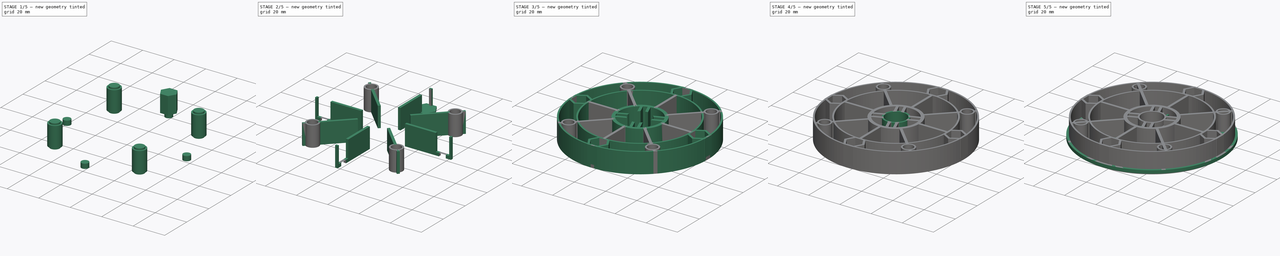
[diagram: build sequence overview — one tinted view per stage of 5, left to right]
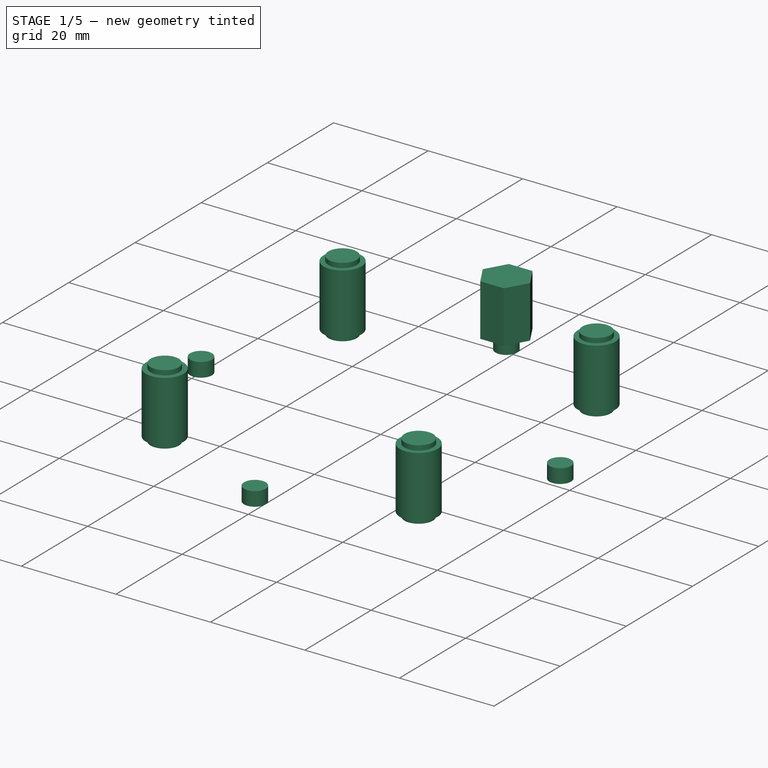
[diagram: stage 1 of 5 — iso view after this stage's code; geometry added in this stage tinted green]
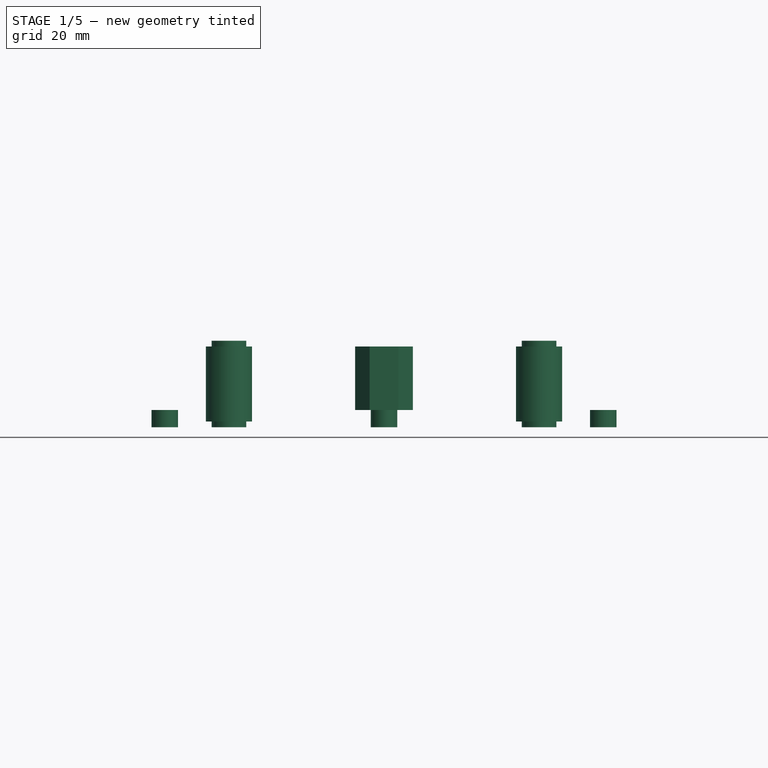
[diagram: stage 1 of 5 — front view after this stage's code; geometry added in this stage tinted green]
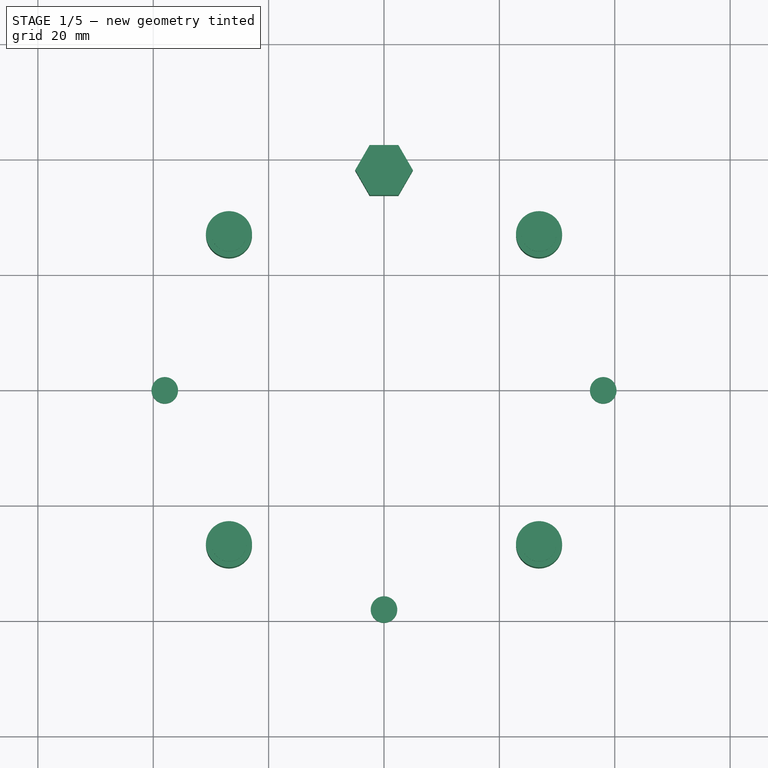
[diagram: stage 1 of 5 — top view after this stage's code; geometry added in this stage tinted green]
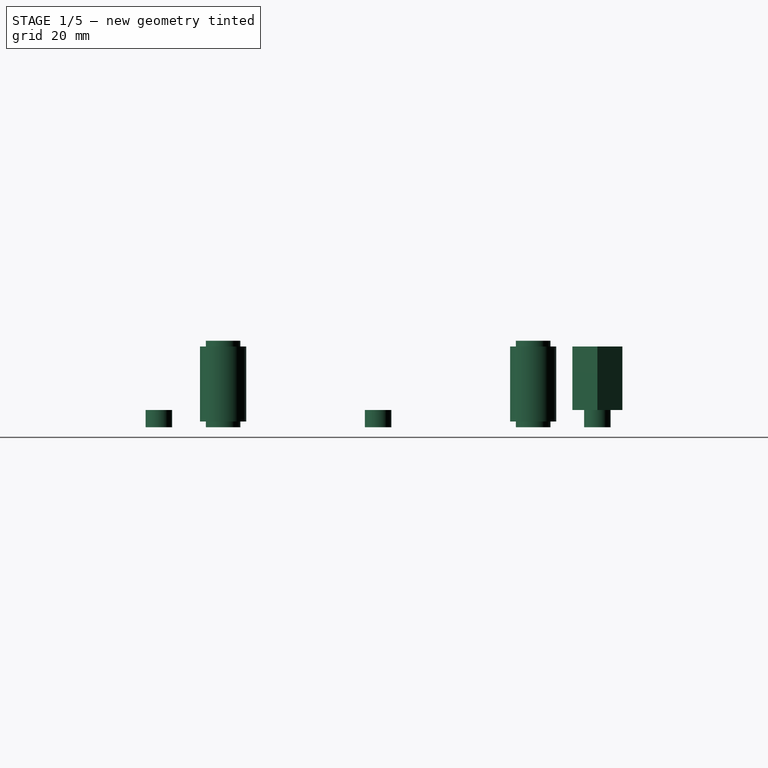
[diagram: stage 1 of 5 — right view after this stage's code; geometry added in this stage tinted green]
FCSTD DOCUMENT  (FreeCAD 0.19R24291 (Git))
Label: tripod
License: All rights reserved
LicenseURL: http://en.wikipedia.org/wiki/All_rights_reserved
objects: Sketcher::SketchObject×16, Part::Extrusion×16, Part::FeaturePython×10, Part::Cut×4, Part::Compound×4, Spreadsheet::Sheet×1, PartDesign::FeatureBase×1, PartDesign::Body×1
note: 42 computed .brp shape members not serialized (recipe doc carries the construction recipe); baked Part::Feature solids carry a one-line shape summary decoded from their .brp

FEATURE [Sketcher::SketchObject] Sketch010
  FullyConstrained = true
  sketch-geometry (7):
    g0: LineSegment StartX=-5 StartY=38 StartZ=0 EndX=-2.5 EndY=33.6699 EndZ=0
    g1: LineSegment StartX=-2.5 StartY=33.6699 StartZ=0 EndX=2.5 EndY=33.6699 EndZ=0
    g2: LineSegment StartX=2.5 StartY=33.6699 StartZ=0 EndX=5 EndY=38 EndZ=0
    g3: LineSegment StartX=5 StartY=38 StartZ=0 EndX=2.5 EndY=42.3301 EndZ=0
    g4: LineSegment StartX=2.5 StartY=42.3301 StartZ=0 EndX=-2.5 EndY=42.3301 EndZ=0
    g5: LineSegment StartX=-2.5 StartY=42.3301 StartZ=0 EndX=-5 EndY=38 EndZ=0
    g6: Circle CenterX=0 CenterY=38 CenterZ=0 NormalX=0 NormalY=0 NormalZ=1 AngleXU=0 Radius=5
  constraints (17):
    c: Coincident(g0,g1)
    c: Coincident(g1,g2)
    c: Coincident(g2,g3)
    c: Coincident(g3,g4)
    c: Coincident(g4,g5)
    c: Coincident(g5,g0)
    c: Equal(g0, g1-g5) x5
    c: PointOnObject(g0,g6)
    c: PointOnObject(g1,g6)
    c: PointOnObject(g2,g6)
    c: PointOnObject(g3,g6)
    c: PointOnObject(g4,g6)
    c: PointOnObject(g5,g6)
    c: PointOnObject(g6,g-2)
    c: Horizontal(g1)
    c: Radius(g6) = 5
    c: DistanceY(g6) = 38
FEATURE [Part::Extrusion] Extrude010
  Base = -> Sketch010
  Dir = (0,0,1)
  DirMode = 2
  FaceMakerClass = Part::FaceMakerBullseye
  LengthFwd = 11
  LengthRev = 0
  Solid = true
  Symmetric = false
FEATURE [Sketcher::SketchObject] Sketch017
  FullyConstrained = true
  expr: Constraints[0] = Spreadsheet.screw_6_32_r2
  sketch-geometry (1):
    g0: Circle CenterX=0 CenterY=38 CenterZ=0 NormalX=0 NormalY=0 NormalZ=1 AngleXU=0 Radius=2.3
  constraints (3):
    c: Radius(g0) = 2.3
    c: DistanceY(g0) = 38
    c: PointOnObject(g0,g-2)
FEATURE [Part::Extrusion] Extrude017
  Base = -> Sketch017
  Dir = (0,0,1)
  DirMode = 2
  FaceMakerClass = Part::FaceMakerBullseye
  LengthFwd = 0
  LengthRev = 3
  Solid = true
  Symmetric = false
FEATURE [Part::FeaturePython] Array010  # Draft array (typed FeaturePython)
  Angle = 360
  ArrayType = 1
  Axis = (0,0,1)
  Base = -> Extrude017
  Center = (0,0,0)
  Count = 4
  ExpandArray = false
  Fuse = false
  IntervalAxis = (0,0,0)
  IntervalX = (100,0,0)
  IntervalY = (0,100,0)
  IntervalZ = (0,0,100)
  NumberCircles = 3
  NumberPolar = 4
  NumberX = 2
  NumberY = 2
  NumberZ = 1
  PlacementList = 4 placements: [(0,0,0),(0,0,0),(0,0,0),(0,0,0)]
  RadialDistance = 50
  ScaleList = (4) [(1,1,1),(1,1,1),(1,1,1),(1,1,1)]
  Symmetry = 1
  TangentialDistance = 25
FEATURE [Sketcher::SketchObject] Sketch018
  FullyConstrained = true
  sketch-geometry (1):
    g0: Circle CenterX=0 CenterY=38 CenterZ=0 NormalX=0 NormalY=0 NormalZ=1 AngleXU=0 Radius=3
  constraints (3):
    c: Radius(g0) = 3
    c: DistanceY(g0) = 38
    c: PointOnObject(g0,g-2)
FEATURE [Part::Extrusion] Extrude018
  Base = -> Sketch018
  Dir = (0,0,1)
  DirMode = 2
  FaceMakerClass = Part::FaceMakerBullseye
  LengthFwd = 12
  LengthRev = 3
  Solid = true
  Symmetric = false
FEATURE [Part::FeaturePython] Array011  # Draft array (typed FeaturePython)
  Angle = 360
  ArrayType = 1
  Axis = (0,0,1)
  Base = -> Extrude018
  Center = (0,0,0)
  Count = 4
  ExpandArray = false
  Fuse = false
  IntervalAxis = (0,0,0)
  IntervalX = (100,0,0)
  IntervalY = (0,100,0)
  IntervalZ = (0,0,100)
  NumberCircles = 3
  NumberPolar = 4
  NumberX = 2
  NumberY = 2
  NumberZ = 1
  Placement = pos=(0,0,0) rot=(0,0,1;0.785398rad)
  PlacementList = 4 placements: [(0,0,0),(0,0,0),(0,0,0),(0,0,0)]
  RadialDistance = 50
  ScaleList = (4) [(1,1,1),(1,1,1),(1,1,1),(1,1,1)]
  Symmetry = 1
  TangentialDistance = 25
FEATURE [Sketcher::SketchObject] Sketch019
  FullyConstrained = true
  sketch-geometry (2):
    g0: Circle CenterX=0 CenterY=38 CenterZ=0 NormalX=0 NormalY=0 NormalZ=1 AngleXU=0 Radius=3
    g1: Circle CenterX=0 CenterY=38 CenterZ=0 NormalX=0 NormalY=0 NormalZ=1 AngleXU=0 Radius=4
  constraints (5):
    c: Radius(g0) = 3
    c: DistanceY(g0) = 38
    c: PointOnObject(g0,g-2)
    c: Coincident(g1,g0)
    c: Radius(g1) = 4
FEATURE [Part::Extrusion] Extrude019
  Base = -> Sketch019
  Dir = (0,0,1)
  DirMode = 2
  FaceMakerClass = Part::FaceMakerBullseye
  LengthFwd = 11
  LengthRev = 2
  Solid = true
  Symmetric = false
FEATURE [Part::FeaturePython] Array012  # Draft array (typed FeaturePython)
  Angle = 360
  ArrayType = 1
  Axis = (0,0,1)
  Base = -> Extrude019
  Center = (0,0,0)
  Count = 4
  ExpandArray = false
  Fuse = false
  IntervalAxis = (0,0,0)
  IntervalX = (100,0,0)
  IntervalY = (0,100,0)
  IntervalZ = (0,0,100)
  NumberCircles = 3
  NumberPolar = 4
  NumberX = 2
  NumberY = 2
  NumberZ = 1
  Placement = pos=(0,0,0) rot=(0,0,1;0.785398rad)
  PlacementList = 4 placements: [(0,0,0),(0,0,0),(0,0,0),(0,0,0)]
  RadialDistance = 50
  ScaleList = (4) [(1,1,1),(1,1,1),(1,1,1),(1,1,1)]
  Symmetry = 1
  TangentialDistance = 25
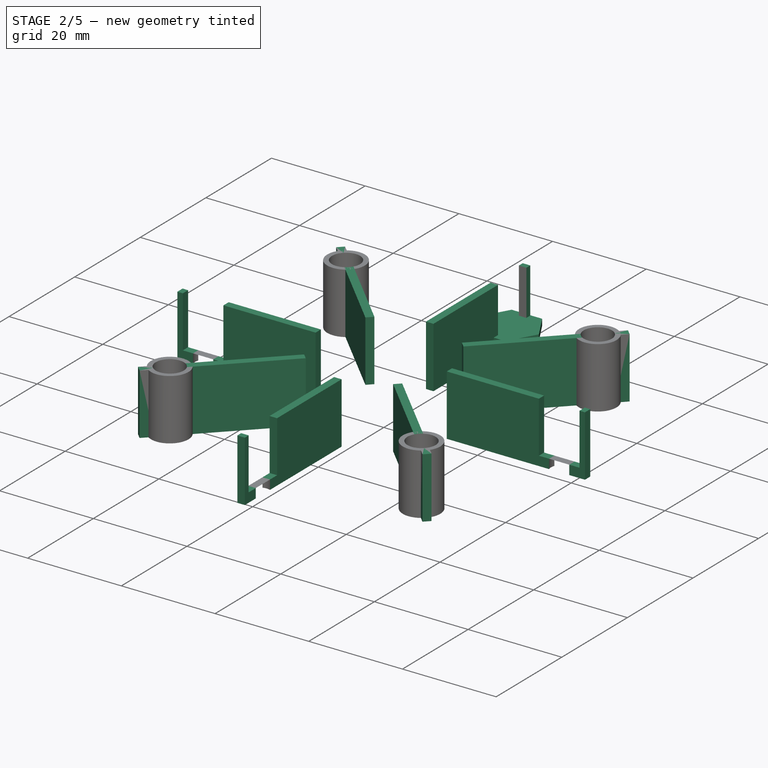
[diagram: stage 2 of 5 — iso view after this stage's code; geometry added in this stage tinted green]
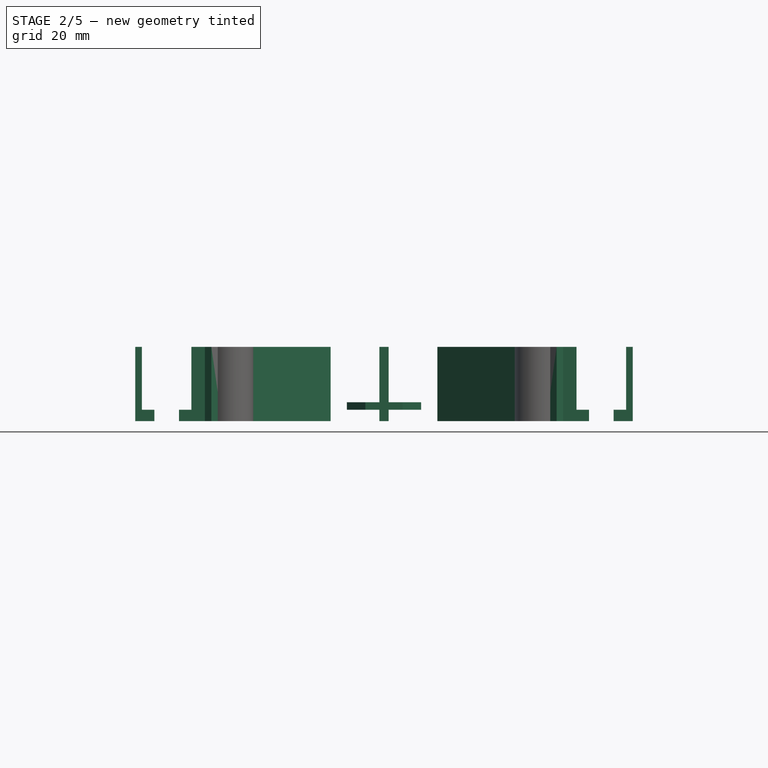
[diagram: stage 2 of 5 — front view after this stage's code; geometry added in this stage tinted green]
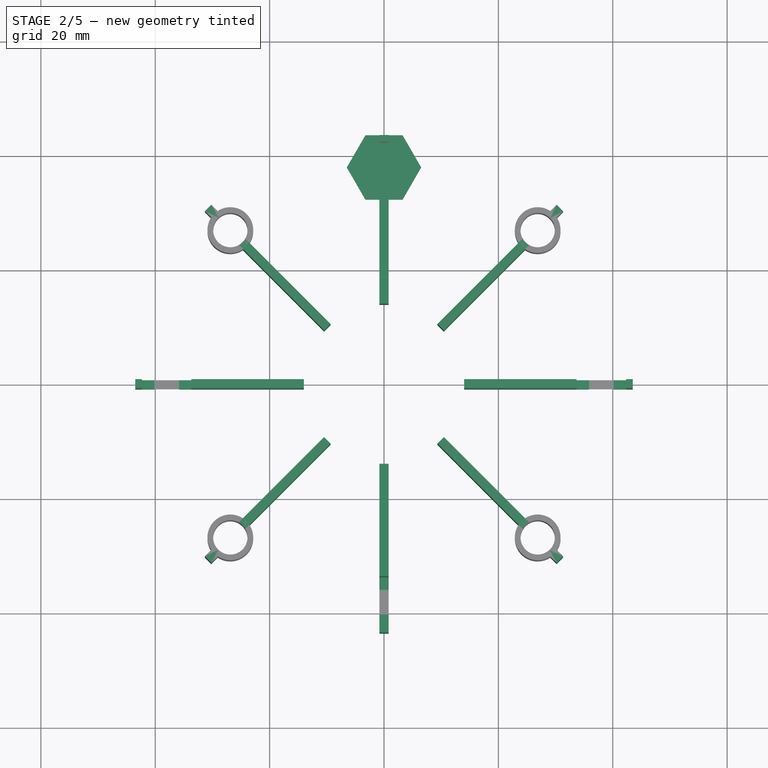
[diagram: stage 2 of 5 — top view after this stage's code; geometry added in this stage tinted green]
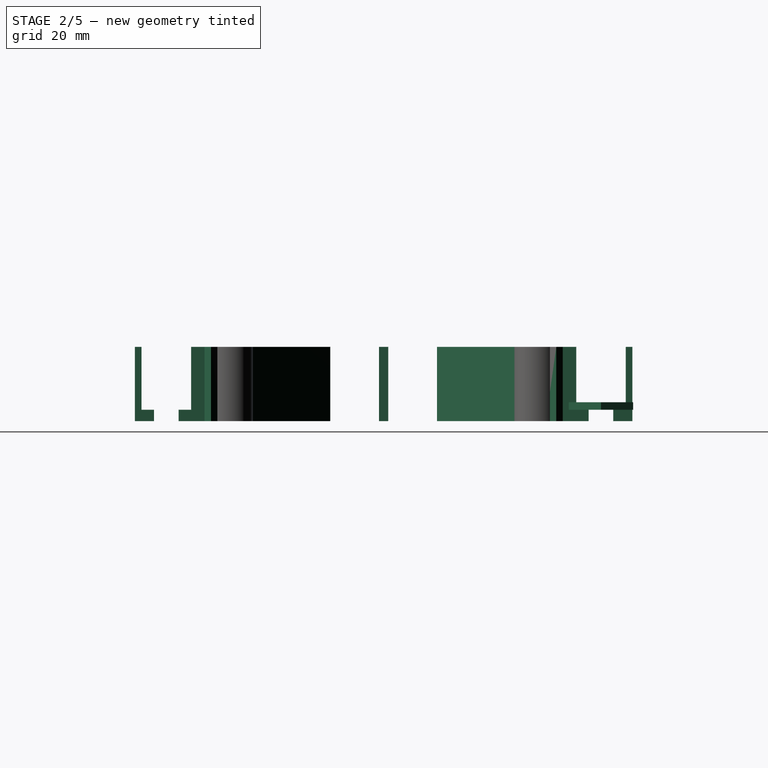
[diagram: stage 2 of 5 — right view after this stage's code; geometry added in this stage tinted green]
FEATURE [Sketcher::SketchObject] Sketch011
  FullyConstrained = true
  Placement = pos=(0,0,2) rot=(0,0,1;0rad)
  sketch-geometry (4):
    g0: LineSegment StartX=-0.8 StartY=43.5 StartZ=0 EndX=0.8 EndY=43.5 EndZ=0
    g1: LineSegment StartX=0.8 StartY=43.5 StartZ=0 EndX=0.8 EndY=14 EndZ=0
    g2: LineSegment StartX=0.8 StartY=14 StartZ=0 EndX=-0.8 EndY=14 EndZ=0
    g3: LineSegment StartX=-0.8 StartY=14 StartZ=0 EndX=-0.8 EndY=43.5 EndZ=0
  constraints (12):
    c: Coincident(g0,g1)
    c: Coincident(g1,g2)
    c: Coincident(g2,g3)
    c: Coincident(g3,g0)
    c: Horizontal(g0)
    c: Horizontal(g2)
    c: Vertical(g1)
    c: Vertical(g3)
    c: DistanceY(g2) = 14
    c: DistanceY(g0) = 43.5
    c: DistanceX(g2,g2) = 1.6
    c: DistanceX(g1) = 0.8
FEATURE [Part::Extrusion] Extrude011
  Base = -> Sketch011
  Dir = (0,0,1)
  DirMode = 2
  FaceMakerClass = Part::FaceMakerBullseye
  LengthFwd = 9
  LengthRev = 4
  Solid = true
  Symmetric = false
FEATURE [Part::FeaturePython] Array006  # Draft array (typed FeaturePython)
  Angle = 360
  ArrayType = 1
  Axis = (0,0,1)
  Base = -> Extrude011
  Center = (0,0,0)
  Count = 8
  ExpandArray = false
  Fuse = false
  IntervalAxis = (0,0,0)
  IntervalX = (100,0,0)
  IntervalY = (0,100,0)
  IntervalZ = (0,0,100)
  NumberCircles = 3
  NumberPolar = 8
  NumberX = 2
  NumberY = 2
  NumberZ = 1
  PlacementList = 8 placements: [(0,0,0),(0,0,0),(0,0,0),(0,0,0),(0,0,0),(0,0,0),(0,0,0),(0,0,0)]
  RadialDistance = 50
  ScaleList = (8) [(1,1,1),(1,1,1),(1,1,1),(1,1,1),(1,1,1),(1,1,1),(1,1,1),(1,1,1)]
  Symmetry = 1
  TangentialDistance = 25
FEATURE [Part::FeaturePython] Array007  # Draft array (typed FeaturePython)
  Angle = 360
  ArrayType = 1
  Axis = (0,0,1)
  Base = -> Extrude010
  Center = (0,0,0)
  Count = 4
  ExpandArray = false
  Fuse = false
  IntervalAxis = (0,0,0)
  IntervalX = (100,0,0)
  IntervalY = (0,100,0)
  IntervalZ = (0,0,100)
  NumberCircles = 3
  NumberPolar = 4
  NumberX = 2
  NumberY = 2
  NumberZ = 1
  PlacementList = 4 placements: [(0,0,0),(0,0,0),(0,0,0),(0,0,0)]
  RadialDistance = 50
  ScaleList = (4) [(1,1,1),(1,1,1),(1,1,1),(1,1,1)]
  Symmetry = 1
  TangentialDistance = 25
FEATURE [Sketcher::SketchObject] Sketch015
  FullyConstrained = true
  expr: Constraints[20] = Spreadsheet.screw_6_32_r2
  sketch-geometry (8):
    g0: LineSegment StartX=6.5 StartY=38 StartZ=0 EndX=3.25 EndY=43.6292 EndZ=0
    g1: LineSegment StartX=3.25 StartY=43.6292 StartZ=0 EndX=-3.25 EndY=43.6292 EndZ=0
    g2: LineSegment StartX=-3.25 StartY=43.6292 StartZ=0 EndX=-6.5 EndY=38 EndZ=0
    g3: LineSegment StartX=-6.5 StartY=38 StartZ=0 EndX=-3.25 EndY=32.3708 EndZ=0
    g4: LineSegment StartX=-3.25 StartY=32.3708 StartZ=0 EndX=3.25 EndY=32.3708 EndZ=0
    g5: LineSegment StartX=3.25 StartY=32.3708 StartZ=0 EndX=6.5 EndY=38 EndZ=0
    g6: Circle CenterX=0 CenterY=38 CenterZ=0 NormalX=0 NormalY=0 NormalZ=1 AngleXU=0 Radius=6.5
    g7: Circle CenterX=0 CenterY=38 CenterZ=0 NormalX=0 NormalY=0 NormalZ=1 AngleXU=0 Radius=2.3
  constraints (19):
    c: Coincident(g0,g1)
    c: Coincident(g1,g2)
    c: Coincident(g2,g3)
    c: Coincident(g3,g4)
    c: Coincident(g4,g5)
    c: Coincident(g5,g0)
    c: Equal(g0, g1-g5) x5
    c: PointOnObject(g0,g6)
    c: PointOnObject(g1,g6)
    c: PointOnObject(g2,g6)
    c: PointOnObject(g3,g6)
    c: PointOnObject(g4,g6)
    c: PointOnObject(g5,g6)
    c: Radius(g6) = 6.5
    c: Horizontal(g4)
    c: Coincident(g7,g6)
    c: Radius(g7) = 2.3
    c: DistanceY(g7) = 38
    c: PointOnObject(g7,g-2)
FEATURE [Part::Extrusion] Extrude015
  Base = -> Sketch015
  Dir = (0,0,1)
  DirMode = 2
  FaceMakerClass = Part::FaceMakerBullseye
  LengthFwd = 1
  LengthRev = 0
  Solid = true
  Symmetric = false
FEATURE [Sketcher::SketchObject] Sketch016
  FullyConstrained = true
  Placement = pos=(0,0,1) rot=(0,0,1;0rad)
  sketch-geometry (7):
    g0: LineSegment StartX=6.5 StartY=38 StartZ=0 EndX=3.25 EndY=43.6292 EndZ=0
    g1: LineSegment StartX=3.25 StartY=43.6292 StartZ=0 EndX=-3.25 EndY=43.6292 EndZ=0
    g2: LineSegment StartX=-3.25 StartY=43.6292 StartZ=0 EndX=-6.5 EndY=38 EndZ=0
    g3: LineSegment StartX=-6.5 StartY=38 StartZ=0 EndX=-3.25 EndY=32.3708 EndZ=0
    g4: LineSegment StartX=-3.25 StartY=32.3708 StartZ=0 EndX=3.25 EndY=32.3708 EndZ=0
    g5: LineSegment StartX=3.25 StartY=32.3708 StartZ=0 EndX=6.5 EndY=38 EndZ=0
    g6: Circle CenterX=0 CenterY=38 CenterZ=0 NormalX=0 NormalY=0 NormalZ=1 AngleXU=0 Radius=6.5
  constraints (17):
    c: Coincident(g0,g1)
    c: Coincident(g1,g2)
    c: Coincident(g2,g3)
    c: Coincident(g3,g4)
    c: Coincident(g4,g5)
    c: Coincident(g5,g0)
    c: Equal(g0, g1-g5) x5
    c: PointOnObject(g0,g6)
    c: PointOnObject(g1,g6)
    c: PointOnObject(g2,g6)
    c: PointOnObject(g3,g6)
    c: PointOnObject(g4,g6)
    c: PointOnObject(g5,g6)
    c: Radius(g6) = 6.5
    c: Horizontal(g4)
    c: DistanceY(g6) = 38
    c: PointOnObject(g6,g-2)
FEATURE [Part::Extrusion] Extrude016
  Base = -> Sketch016
  Dir = (0,0,1)
  DirMode = 2
  FaceMakerClass = Part::FaceMakerBullseye
  LengthFwd = 0.32
  LengthRev = 0
  Solid = true
  Symmetric = false
FEATURE [Part::Compound] Compound003
  Links = -> [Array007,Array010,Array011]
FEATURE [Part::Cut] Cut005
  Base = -> Array006
  Tool = -> Compound003
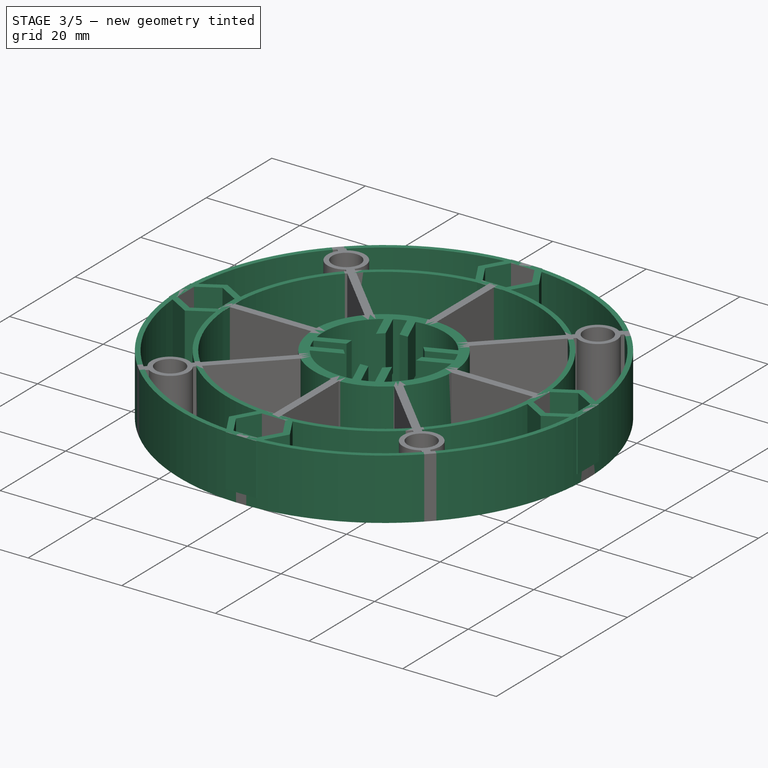
[diagram: stage 3 of 5 — iso view after this stage's code; geometry added in this stage tinted green]
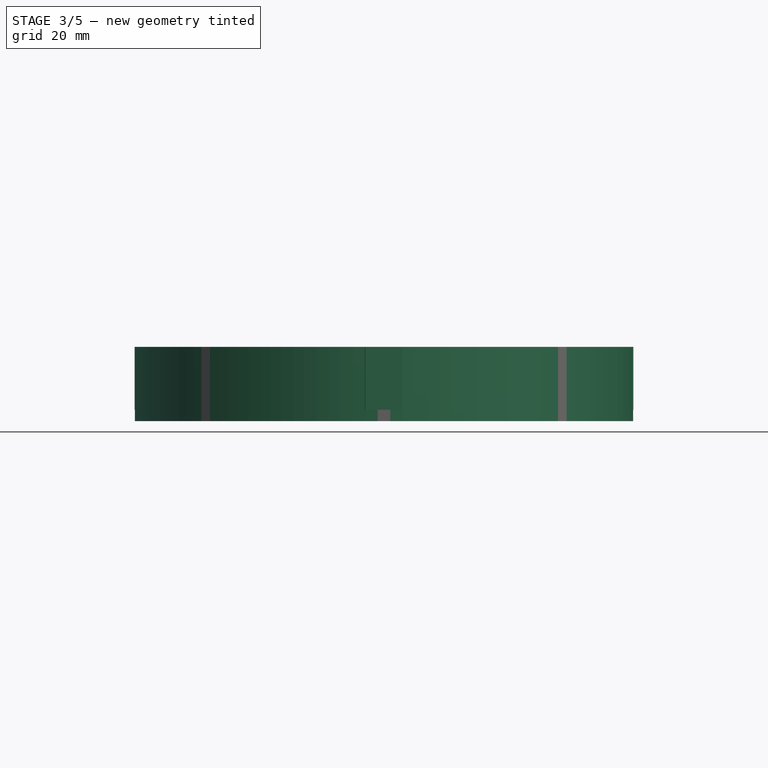
[diagram: stage 3 of 5 — front view after this stage's code; geometry added in this stage tinted green]
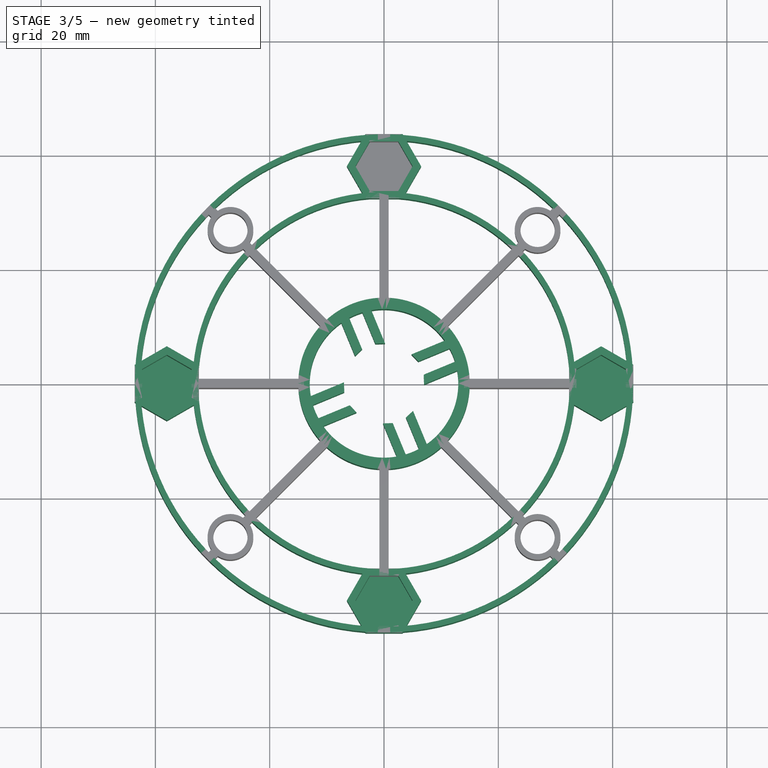
[diagram: stage 3 of 5 — top view after this stage's code; geometry added in this stage tinted green]
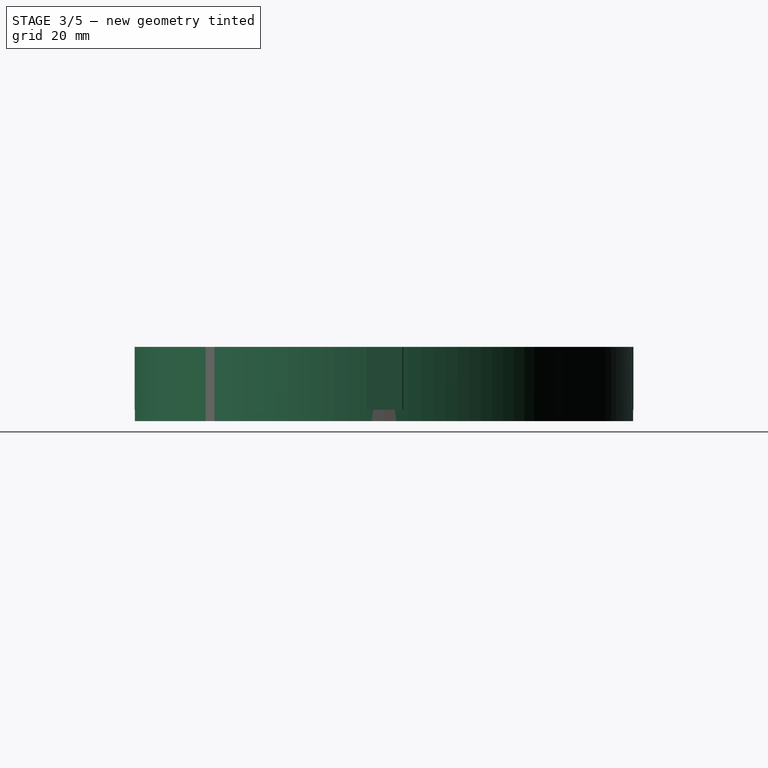
[diagram: stage 3 of 5 — right view after this stage's code; geometry added in this stage tinted green]
FEATURE [Sketcher::SketchObject] Sketch008
  FullyConstrained = true
  expr: Constraints[4] = Spreadsheet.screw_6_32_r2 + 2
  expr: Constraints[2] = Spreadsheet.screw_6_32_r2
  sketch-geometry (2):
    g0: Circle CenterX=0 CenterY=38 CenterZ=0 NormalX=0 NormalY=0 NormalZ=1 AngleXU=0 Radius=2.3
    g1: Circle CenterX=0 CenterY=38 CenterZ=0 NormalX=0 NormalY=0 NormalZ=1 AngleXU=0 Radius=4.3
  constraints (5):
    c: PointOnObject(g0,g-2)
    c: DistanceY(g0) = 38
    c: Radius(g0) = 2.3
    c: Coincident(g1,g0)
    c: Radius(g1) = 4.3
FEATURE [Part::Extrusion] Extrude008
  Base = -> Sketch008
  Dir = (0,0,1)
  DirMode = 2
  FaceMakerClass = Part::FaceMakerBullseye
  LengthFwd = 0
  LengthRev = 2
  Solid = true
  Symmetric = false
FEATURE [Sketcher::SketchObject] Sketch009
  FullyConstrained = true
  Placement = pos=(0,0,2) rot=(0,0,1;0rad)
  sketch-geometry (6):
    g0: Circle CenterX=0 CenterY=0 CenterZ=0 NormalX=0 NormalY=0 NormalZ=1 AngleXU=0 Radius=43.6
    g1: Circle CenterX=0 CenterY=0 CenterZ=0 NormalX=0 NormalY=0 NormalZ=1 AngleXU=0 Radius=42.6
    g2: Circle CenterX=0 CenterY=0 CenterZ=0 NormalX=0 NormalY=0 NormalZ=1 AngleXU=0 Radius=13
    g3: Circle CenterX=0 CenterY=0 CenterZ=0 NormalX=0 NormalY=0 NormalZ=1 AngleXU=0 Radius=15
    g4: Circle CenterX=0 CenterY=0 CenterZ=0 NormalX=0 NormalY=0 NormalZ=1 AngleXU=0 Radius=33.5
    g5: Circle CenterX=0 CenterY=0 CenterZ=0 NormalX=0 NormalY=0 NormalZ=1 AngleXU=0 Radius=32.5
  constraints (12):
    c: Radius(g0) = 43.6
    c: Coincident(g1,g0)
    c: Radius(g1) = 42.6
    c: Coincident(g2,g0)
    c: Radius(g2) = 13
    c: Coincident(g3,g0)
    c: Radius(g3) = 15
    c: Coincident(g4,g0)
    c: Coincident(g5,g0)
    c: Radius(g5) = 32.5
    c: Radius(g4) = 33.5
    c: Coincident(g0,g-1)
FEATURE [Part::Extrusion] Extrude009
  Base = -> Sketch009
  Dir = (0,0,1)
  DirMode = 2
  FaceMakerClass = Part::FaceMakerBullseye
  LengthFwd = 9
  LengthRev = 4
  Solid = true
  Symmetric = false
FEATURE [Sketcher::SketchObject] Sketch013
  FullyConstrained = false
  Placement = pos=(0,0,0.64) rot=(0,0,1;0rad)
  sketch-geometry (8):
    g0: LineSegment StartX=1.25 StartY=14 StartZ=0 EndX=1.25 EndY=7 EndZ=0
    g1: LineSegment StartX=-1.25 StartY=7 StartZ=0 EndX=-1.25 EndY=14 EndZ=0
    g2: LineSegment StartX=-1.25 StartY=14 StartZ=0 EndX=-2.85 EndY=14 EndZ=0
    g3: LineSegment StartX=-2.85 StartY=14 StartZ=0 EndX=-2.85 EndY=6.38736 EndZ=0
    g4: LineSegment StartX=-2.85 StartY=6.38736 StartZ=0 EndX=-1.25 EndY=7 EndZ=0
    g5: LineSegment StartX=1.25 StartY=14 StartZ=0 EndX=2.85 EndY=14 EndZ=0
    g6: LineSegment StartX=2.85 StartY=14 StartZ=0 EndX=2.85 EndY=6.40515 EndZ=0
    g7: LineSegment StartX=2.85 StartY=6.40515 StartZ=0 EndX=1.25 EndY=7 EndZ=0
  constraints (22):
    c: Vertical(g0)
    c: Vertical(g1)
    c: DistanceX(g1,g0) = 2.5
    c: DistanceX(g0) = 1.25
    c: DistanceY(g0) = 7
    c: DistanceY(g0) = 14
    c: Coincident(g1,g2)
    c: Horizontal(g2)
    c: Coincident(g2,g3)
    c: Vertical(g3)
    c: Coincident(g3,g4)
    c: Coincident(g4,g1)
    c: Coincident(g0,g5)
    c: Horizontal(g5)
    c: Coincident(g5,g6)
    c: Vertical(g6)
    c: Coincident(g6,g7)
    c: Coincident(g7,g0)
    c: Horizontal(g0,g1)
    c: Horizontal(g1,g0)
    c: DistanceX(g4,g4) = 1.6
    c: DistanceX(g7,g7) = 1.6
FEATURE [Part::Extrusion] Extrude013
  Base = -> Sketch013
  Dir = (0,0,1)
  DirMode = 2
  FaceMakerClass = Part::FaceMakerBullseye
  LengthFwd = 10.36
  LengthRev = 0
  Solid = true
  Symmetric = false
FEATURE [Part::FeaturePython] Array008  # Draft array (typed FeaturePython)
  Angle = 360
  ArrayType = 1
  Axis = (0,0,1)
  Base = -> Extrude013
  Center = (0,0,0)
  Count = 4
  ExpandArray = false
  Fuse = false
  IntervalAxis = (0,0,0)
  IntervalX = (100,0,0)
  IntervalY = (0,100,0)
  IntervalZ = (0,0,100)
  NumberCircles = 3
  NumberPolar = 4
  NumberX = 2
  NumberY = 2
  NumberZ = 1
  Placement = pos=(0,0,0) rot=(0,0,1;0.392699rad)
  PlacementList = 4 placements: [(0,0,0),(0,0,0),(0,0,0),(0,0,0)]
  RadialDistance = 50
  ScaleList = (4) [(1,1,1),(1,1,1),(1,1,1),(1,1,1)]
  Symmetry = 1
  TangentialDistance = 25
FEATURE [Sketcher::SketchObject] Sketch014
  FullyConstrained = true
  sketch-geometry (14):
    g0: LineSegment StartX=2.5 StartY=33.6699 StartZ=0 EndX=5 EndY=38 EndZ=0
    g1: LineSegment StartX=5 StartY=38 StartZ=0 EndX=2.5 EndY=42.3301 EndZ=0
    g2: LineSegment StartX=2.5 StartY=42.3301 StartZ=0 EndX=-2.5 EndY=42.3301 EndZ=0
    g3: LineSegment StartX=-2.5 StartY=42.3301 StartZ=0 EndX=-5 EndY=38 EndZ=0
    g4: LineSegment StartX=-5 StartY=38 StartZ=0 EndX=-2.5 EndY=33.6699 EndZ=0
    g5: LineSegment StartX=-2.5 StartY=33.6699 StartZ=0 EndX=2.5 EndY=33.6699 EndZ=0
    g6: Circle CenterX=0 CenterY=38 CenterZ=0 NormalX=0 NormalY=0 NormalZ=1 AngleXU=0 Radius=5
    g7: LineSegment StartX=6.5 StartY=38 StartZ=0 EndX=3.25 EndY=43.6292 EndZ=0
    g8: LineSegment StartX=3.25 StartY=43.6292 StartZ=0 EndX=-3.25 EndY=43.6292 EndZ=0
    g9: LineSegment StartX=-3.25 StartY=43.6292 StartZ=0 EndX=-6.5 EndY=38 EndZ=0
    g10: LineSegment StartX=-6.5 StartY=38 StartZ=0 EndX=-3.25 EndY=32.3708 EndZ=0
    g11: LineSegment StartX=-3.25 StartY=32.3708 StartZ=0 EndX=3.25 EndY=32.3708 EndZ=0
    g12: LineSegment StartX=3.25 StartY=32.3708 StartZ=0 EndX=6.5 EndY=38 EndZ=0
    g13: Circle CenterX=0 CenterY=38 CenterZ=0 NormalX=0 NormalY=0 NormalZ=1 AngleXU=0 Radius=6.5
  constraints (33):
    c: Coincident(g0,g1)
    c: Coincident(g1,g2)
    c: Coincident(g2,g3)
    c: Coincident(g3,g4)
    c: Coincident(g4,g5)
    c: Coincident(g5,g0)
    c: Equal(g0, g1-g5) x5
    c: PointOnObject(g0,g6)
    c: PointOnObject(g1,g6)
    c: PointOnObject(g2,g6)
    c: PointOnObject(g3,g6)
    c: PointOnObject(g4,g6)
    c: PointOnObject(g5,g6)
    c: PointOnObject(g6,g-2)
    c: Radius(g6) = 5
    c: Coincident(g7,g8)
    c: Coincident(g8,g9)
    c: Coincident(g9,g10)
    c: Coincident(g10,g11)
    c: Coincident(g11,g12)
    c: Coincident(g12,g7)
    c: Equal(g7, g8-g12) x5
    c: PointOnObject(g7,g13)
    c: PointOnObject(g8,g13)
    c: PointOnObject(g9,g13)
    c: PointOnObject(g10,g13)
    c: PointOnObject(g11,g13)
    c: PointOnObject(g12,g13)
    c: Coincident(g13,g6)
    c: Radius(g13) = 6.5
    c: DistanceY(g6) = 38
    c: Horizontal(g5)
    c: Horizontal(g11)
FEATURE [Part::Extrusion] Extrude014
  Base = -> Sketch014
  Dir = (0,0,1)
  DirMode = 2
  FaceMakerClass = Part::FaceMakerBullseye
  LengthFwd = 11
  LengthRev = 0
  Solid = true
  Symmetric = false
FEATURE [Part::Compound] Compound002
  Links = -> [Extrude014,Extrude015,Extrude016,Extrude008]
FEATURE [Part::FeaturePython] Array009  # Draft array (typed FeaturePython)
  Angle = 360
  ArrayType = 1
  Axis = (0,0,1)
  Base = -> Compound002
  Center = (0,0,0)
  Count = 4
  ExpandArray = false
  Fuse = false
  IntervalAxis = (0,0,0)
  IntervalX = (100,0,0)
  IntervalY = (0,100,0)
  IntervalZ = (0,0,100)
  NumberCircles = 3
  NumberPolar = 4
  NumberX = 2
  NumberY = 2
  NumberZ = 1
  PlacementList = 4 placements: [(0,0,0),(0,0,0),(0,0,0),(0,0,0)]
  RadialDistance = 50
  ScaleList = (4) [(1,1,1),(1,1,1),(1,1,1),(1,1,1)]
  Symmetry = 1
  TangentialDistance = 25
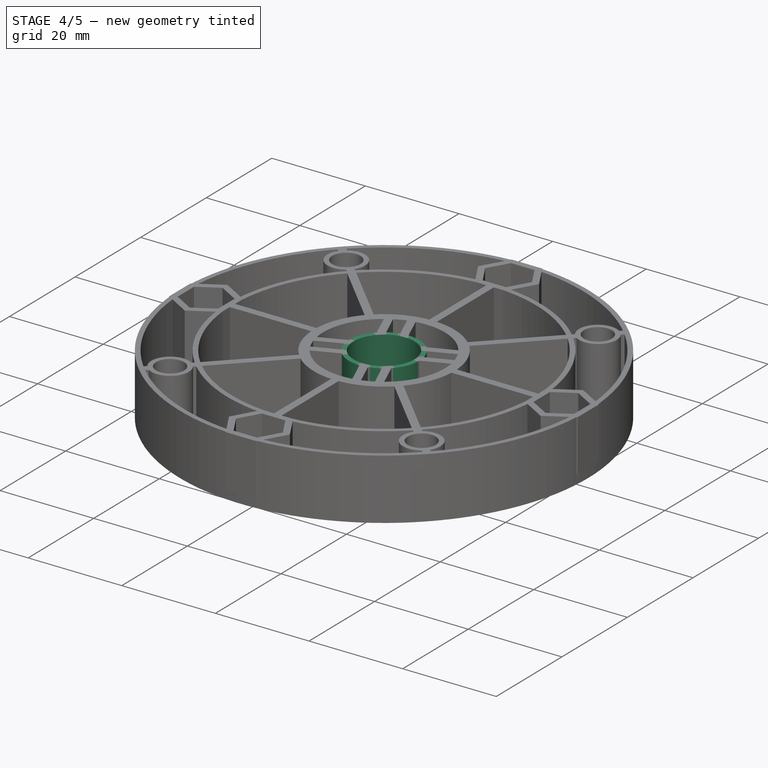
[diagram: stage 4 of 5 — iso view after this stage's code; geometry added in this stage tinted green]
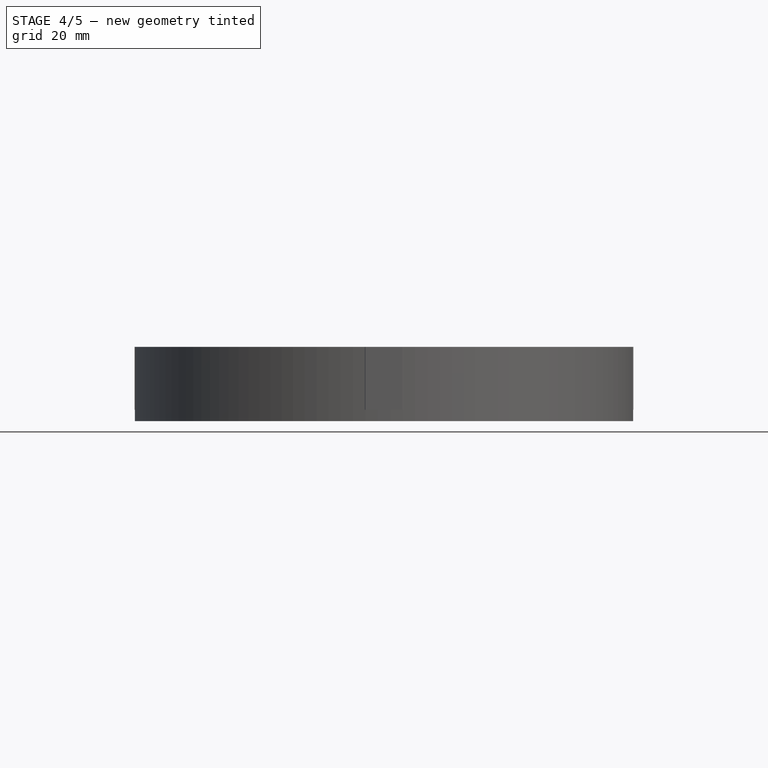
[diagram: stage 4 of 5 — front view after this stage's code; geometry added in this stage tinted green]
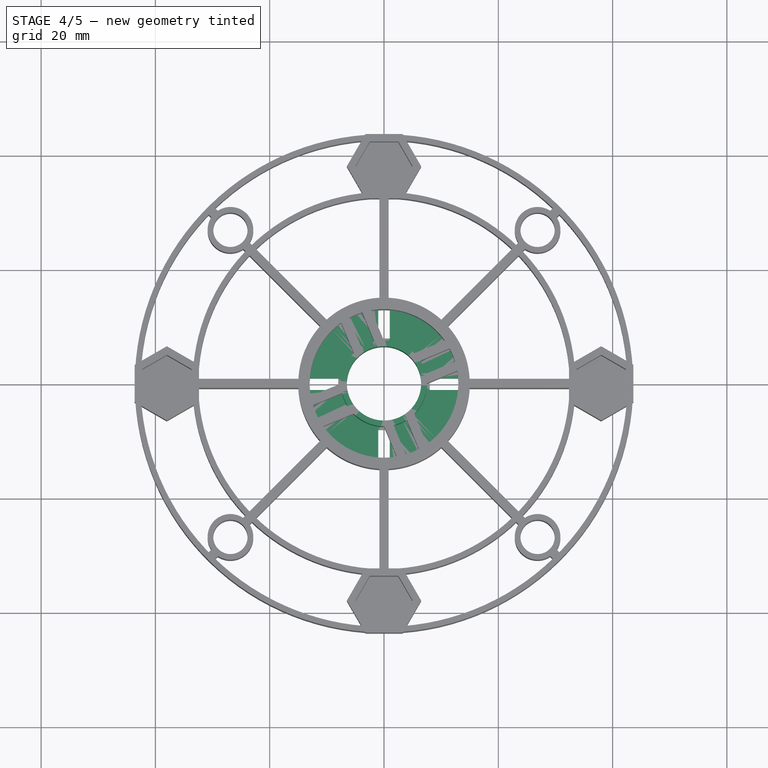
[diagram: stage 4 of 5 — top view after this stage's code; geometry added in this stage tinted green]
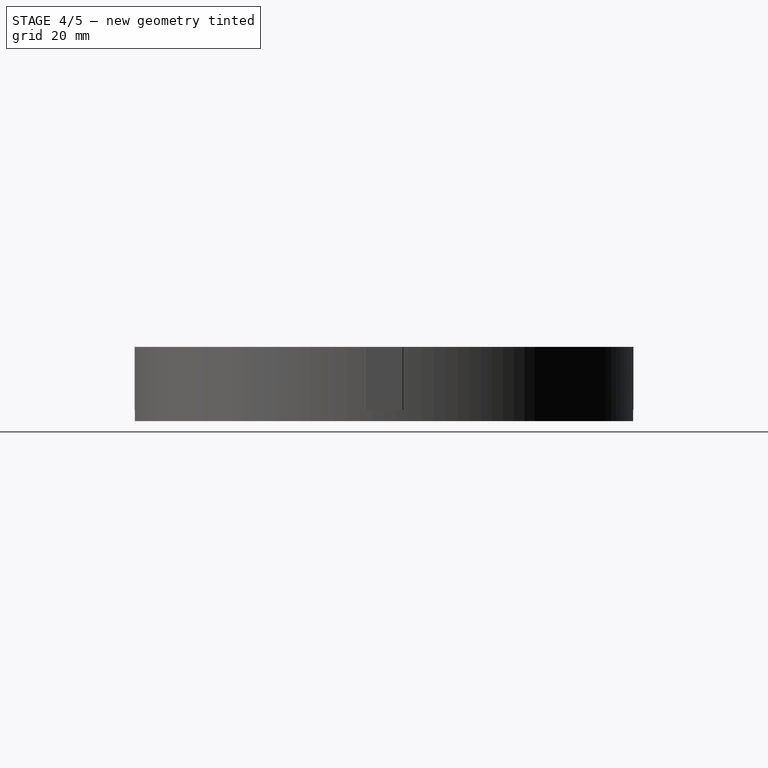
[diagram: stage 4 of 5 — right view after this stage's code; geometry added in this stage tinted green]
FEATURE [Sketcher::SketchObject] Sketch
  FullyConstrained = true
  Placement = pos=(0,0,0.64) rot=(0,0,1;0rad)
  sketch-geometry (2):
    g0: Circle CenterX=0 CenterY=0 CenterZ=0 NormalX=0 NormalY=0 NormalZ=1 AngleXU=0 Radius=6.5
    g1: Circle CenterX=0 CenterY=0 CenterZ=0 NormalX=0 NormalY=0 NormalZ=1 AngleXU=0 Radius=7.5
  constraints (4):
    c: Coincident(g0,g-1)
    c: Radius(g0) = 6.5
    c: Coincident(g1,g0)
    c: Radius(g1) = 7.5
FEATURE [Sketcher::SketchObject] Sketch001
  FullyConstrained = true
  sketch-geometry (8):
    g0: LineSegment StartX=-1 StartY=13 StartZ=0 EndX=1 EndY=13 EndZ=0
    g1: LineSegment StartX=1 StartY=13 StartZ=0 EndX=1 EndY=8 EndZ=0
    g2: LineSegment StartX=1 StartY=8 StartZ=0 EndX=-1 EndY=8 EndZ=0
    g3: LineSegment StartX=-1 StartY=8 StartZ=0 EndX=-1 EndY=13 EndZ=0
    g4: LineSegment StartX=-2 StartY=14 StartZ=0 EndX=2 EndY=14 EndZ=0
    g5: LineSegment StartX=2 StartY=14 StartZ=0 EndX=2 EndY=7 EndZ=0
    g6: LineSegment StartX=2 StartY=7 StartZ=0 EndX=-2 EndY=7 EndZ=0
    g7: LineSegment StartX=-2 StartY=7 StartZ=0 EndX=-2 EndY=14 EndZ=0
  constraints (24):
    c: Coincident(g0,g1)
    c: Coincident(g1,g2)
    c: Coincident(g2,g3)
    c: Coincident(g3,g0)
    c: Horizontal(g0)
    c: Horizontal(g2)
    c: Vertical(g1)
    c: Vertical(g3)
    c: DistanceX(g0) = -1
    c: DistanceX(g0,g0) = 2
    c: DistanceY(g2) = 8
    c: Coincident(g4,g5)
    c: Coincident(g5,g6)
    c: Coincident(g6,g7)
    c: Coincident(g7,g4)
    c: Horizontal(g4)
    c: Horizontal(g6)
    c: Vertical(g5)
    c: Vertical(g7)
    c: DistanceX(g1,g5) = 1
    c: DistanceY(g5,g1) = 1
    c: DistanceX(g4,g0) = 1
    c: DistanceY(g0,g4) = 1
    c: DistanceY(g0) = 13
FEATURE [Part::Extrusion] Extrude
  Base = -> Sketch
  Dir = (0,0,1)
  DirMode = 2
  FaceMakerClass = Part::FaceMakerBullseye
  LengthFwd = 10.36
  LengthRev = 0
  Solid = true
  Symmetric = false
FEATURE [Sketcher::SketchObject] Sketch003
  FullyConstrained = true
  expr: Constraints[13] = Spreadsheet.screw_6_32_r2
  sketch-geometry (5):
    g0: LineSegment StartX=-1 StartY=13 StartZ=0 EndX=1 EndY=13 EndZ=0
    g1: LineSegment StartX=1 StartY=13 StartZ=0 EndX=1 EndY=8 EndZ=0
    g2: LineSegment StartX=1 StartY=8 StartZ=0 EndX=-1 EndY=8 EndZ=0
    g3: LineSegment StartX=-1 StartY=8 StartZ=0 EndX=-1 EndY=13 EndZ=0
    g4: Circle CenterX=0 CenterY=38.25 CenterZ=0 NormalX=0 NormalY=0 NormalZ=1 AngleXU=0 Radius=2.3
  constraints (15):
    c: Coincident(g0,g1)
    c: Coincident(g1,g2)
    c: Coincident(g2,g3)
    c: Coincident(g3,g0)
    c: Horizontal(g0)
    c: Horizontal(g2)
    c: Vertical(g1)
    c: Vertical(g3)
    c: DistanceX(g0) = -1
    c: DistanceX(g0,g0) = 2
    c: DistanceY(g2) = 8
    c: PointOnObject(g4,g-2)
    c: DistanceY(g4) = 38.25
    c: Radius(g4) = 2.3
    c: DistanceY(g0) = 13
FEATURE [Part::Extrusion] Extrude003
  Base = -> Sketch003
  Dir = (0,0,1)
  DirMode = 2
  FaceMakerClass = Part::FaceMakerBullseye
  LengthFwd = 5
  LengthRev = 3
  Solid = true
  Symmetric = false
FEATURE [Part::FeaturePython] Array001  # Draft array (typed FeaturePython)
  Angle = 360
  ArrayType = 1
  Axis = (0,0,1)
  Base = -> Extrude003
  Center = (0,0,0)
  Count = 4
  ExpandArray = false
  Fuse = false
  IntervalAxis = (0,0,0)
  IntervalX = (100,0,0)
  IntervalY = (0,100,0)
  IntervalZ = (0,0,100)
  NumberCircles = 3
  NumberPolar = 4
  NumberX = 2
  NumberY = 2
  NumberZ = 1
  PlacementList = 4 placements: [(0,0,0),(0,0,0),(0,0,0),(0,0,0)]
  RadialDistance = 50
  ScaleList = (4) [(1,1,1),(1,1,1),(1,1,1),(1,1,1)]
  Symmetry = 1
  TangentialDistance = 25
FEATURE [PartDesign::FeatureBase] Clone
  BaseFeature = -> Array001
FEATURE [PartDesign::Body] Body
  Group = -> [Clone]
  Origin = -> Origin
  Tip = -> Clone
FEATURE [Sketcher::SketchObject] Sketch012
  FullyConstrained = true
  Placement = pos=(0,0,2) rot=(0,0,1;0rad)
  sketch-geometry (2):
    g0: Circle CenterX=0 CenterY=0 CenterZ=0 NormalX=0 NormalY=0 NormalZ=1 AngleXU=0 Radius=13
    g1: Circle CenterX=0 CenterY=0 CenterZ=0 NormalX=0 NormalY=0 NormalZ=1 AngleXU=0 Radius=6.5
  constraints (4):
    c: Radius(g0) = 13
    c: Coincident(g-1,g0)
    c: Coincident(g1,g0)
    c: Radius(g1) = 6.5
FEATURE [Part::Extrusion] Extrude012
  Base = -> Sketch012
  Dir = (0,0,1)
  DirMode = 2
  FaceMakerClass = Part::FaceMakerBullseye
  LengthFwd = 0
  LengthRev = 2
  Solid = true
  Symmetric = false
FEATURE [Part::Cut] Cut003
  Base = -> Extrude012
  Tool = -> Body
FEATURE [Part::Compound] Compound
  Links = -> [Extrude,Array008,Array009,Cut005,Array012,Extrude009]
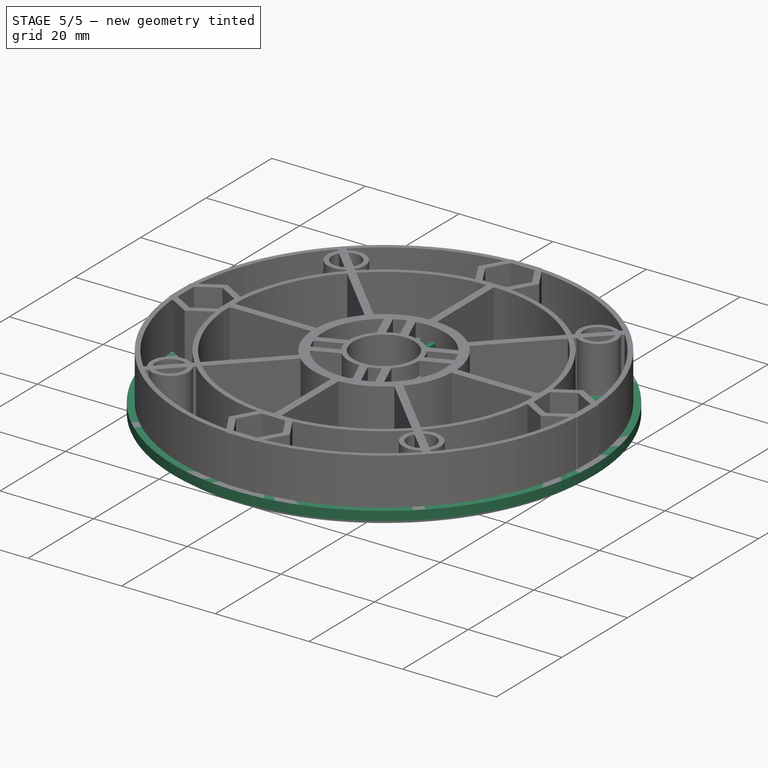
[diagram: stage 5 of 5 — iso view after this stage's code; geometry added in this stage tinted green]
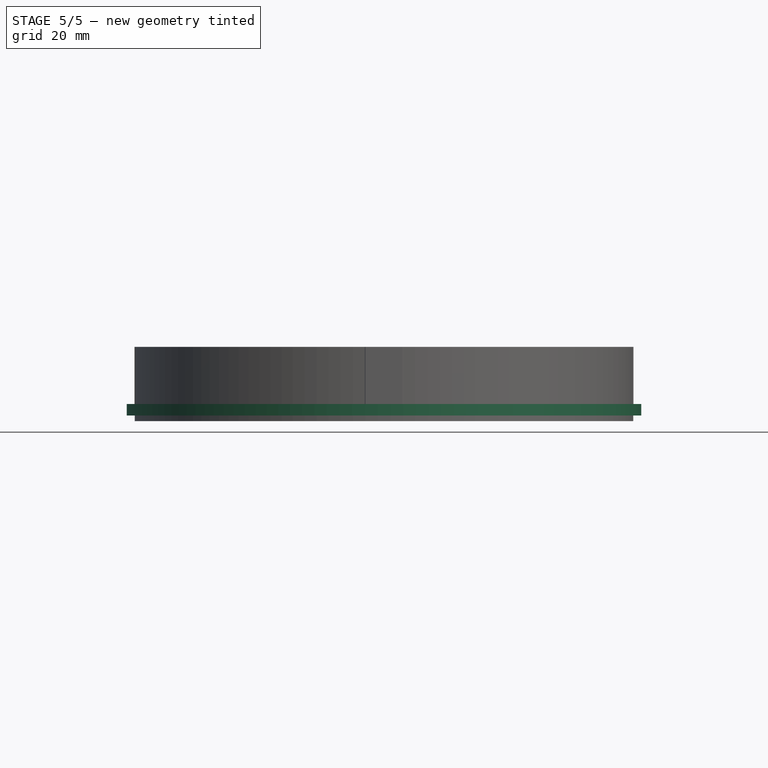
[diagram: stage 5 of 5 — front view after this stage's code; geometry added in this stage tinted green]
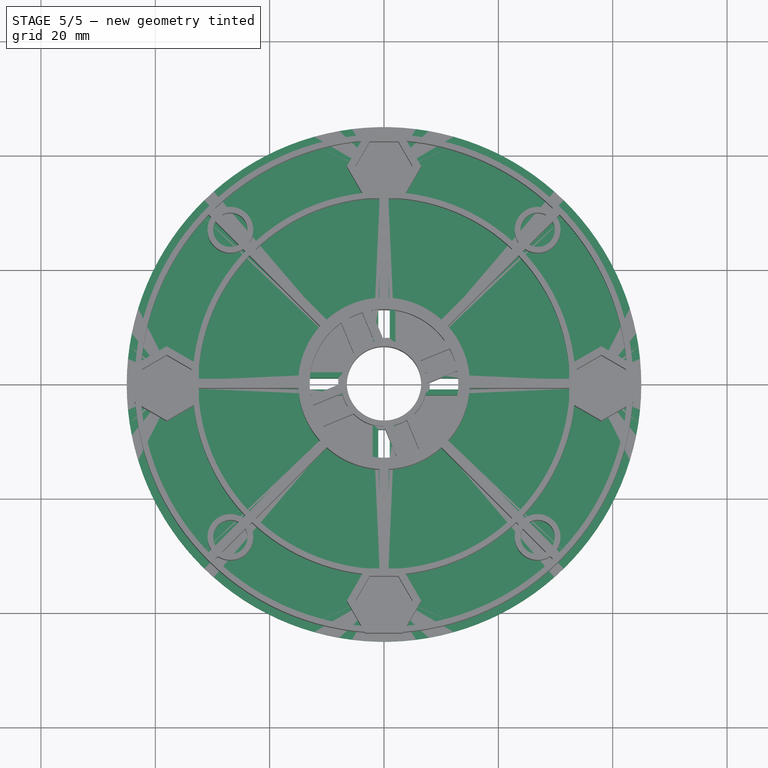
[diagram: stage 5 of 5 — top view after this stage's code; geometry added in this stage tinted green]
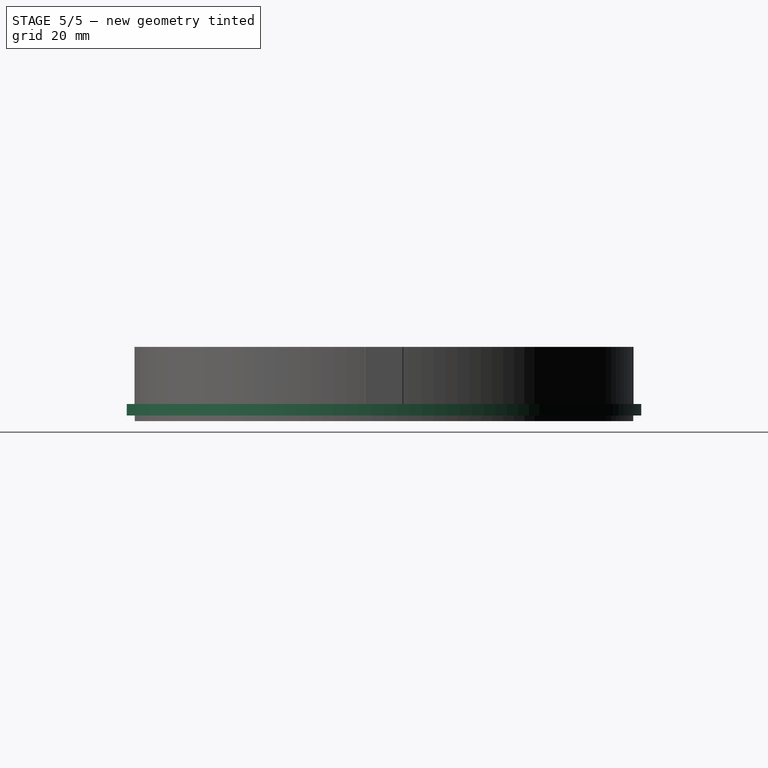
[diagram: stage 5 of 5 — right view after this stage's code; geometry added in this stage tinted green]
FEATURE [Part::Extrusion] Extrude001
  Base = -> Sketch001
  Dir = (0,0,1)
  DirMode = 2
  FaceMakerClass = Part::FaceMakerBullseye
  LengthFwd = 8
  LengthRev = 0
  Solid = true
  Symmetric = false
FEATURE [Part::FeaturePython] Array  # Draft array (typed FeaturePython)
  Angle = 360
  ArrayType = 1
  Axis = (0,0,1)
  Base = -> Extrude001
  Center = (0,0,0)
  Count = 4
  ExpandArray = false
  Fuse = false
  IntervalAxis = (0,0,0)
  IntervalX = (100,0,0)
  IntervalY = (0,100,0)
  IntervalZ = (0,0,100)
  NumberCircles = 3
  NumberPolar = 4
  NumberX = 2
  NumberY = 2
  NumberZ = 1
  PlacementList = 4 placements: [(0,0,0),(0,0,0),(0,0,0),(0,0,0)]
  RadialDistance = 50
  ScaleList = (4) [(1,1,1),(1,1,1),(1,1,1),(1,1,1)]
  Symmetry = 1
  TangentialDistance = 25
FEATURE [Sketcher::SketchObject] Sketch002
  FullyConstrained = true
  sketch-geometry (2):
    g0: Circle CenterX=0 CenterY=0 CenterZ=0 NormalX=0 NormalY=0 NormalZ=1 AngleXU=0 Radius=45
    g1: Circle CenterX=0 CenterY=0 CenterZ=0 NormalX=0 NormalY=0 NormalZ=1 AngleXU=0 Radius=13
  constraints (4):
    c: Coincident(g0,g-1)
    c: Radius(g0) = 45
    c: Coincident(g1,g0)
    c: Radius(g1) = 13
FEATURE [Part::Extrusion] Extrude002
  Base = -> Sketch002
  Dir = (0,0,1)
  DirMode = 2
  FaceMakerClass = Part::FaceMakerBullseye
  LengthFwd = 1
  LengthRev = 1
  Solid = true
  Symmetric = false
FEATURE [Spreadsheet::Sheet] Spreadsheet
  cells = A1=screw_r1; B1(screw_r1)=1.2; D1=magnet_clearance_r; E1(magnet_clearance_r)=3.3; A2=screw_r2; B2(screw_r2)=1.5; A3=4-40 screw_r1; B3(screw_4_40_r1)=1.65; A4=4-40 screw_r2; B4(screw_4_40_r2)=2; A5=lunchbox screw r1; B5(lunchbox_screw_r1)=1.4; A6=lunchbox screw r2; B6(lunchbox_screw_r2)=1.8; A7=6-32 screw_r1; B7(screw_6_32_r1)=1.5; A8=6-32 screw_r2; B8(screw_6_32_r2)=2.3; A9=lunchbox_screw_head; B9(lunchbox_screw_head)=3.5
FEATURE [Part::Cut] Cut
  Base = -> Extrude002
  Tool = -> Array001
FEATURE [Part::Compound] Compound001
  Links = -> [Cut]
FEATURE [Part::FeaturePython] Array005  # Draft array (typed FeaturePython)
  Angle = 360
  ArrayType = 1
  Axis = (0,0,1)
  Base = -> Extrude008
  Center = (0,0,0)
  Count = 4
  ExpandArray = false
  Fuse = false
  IntervalAxis = (0,0,0)
  IntervalX = (100,0,0)
  IntervalY = (0,100,0)
  IntervalZ = (0,0,100)
  NumberCircles = 3
  NumberPolar = 4
  NumberX = 2
  NumberY = 2
  NumberZ = 1
  PlacementList = 4 placements: [(0,0,0),(0,0,0),(0,0,0),(0,0,0)]
  RadialDistance = 50
  ScaleList = (4) [(1,1,1),(1,1,1),(1,1,1),(1,1,1)]
  Symmetry = 1
  TangentialDistance = 25
FEATURE [Part::Cut] Cut002
  Base = -> Array006
  Tool = -> Array007
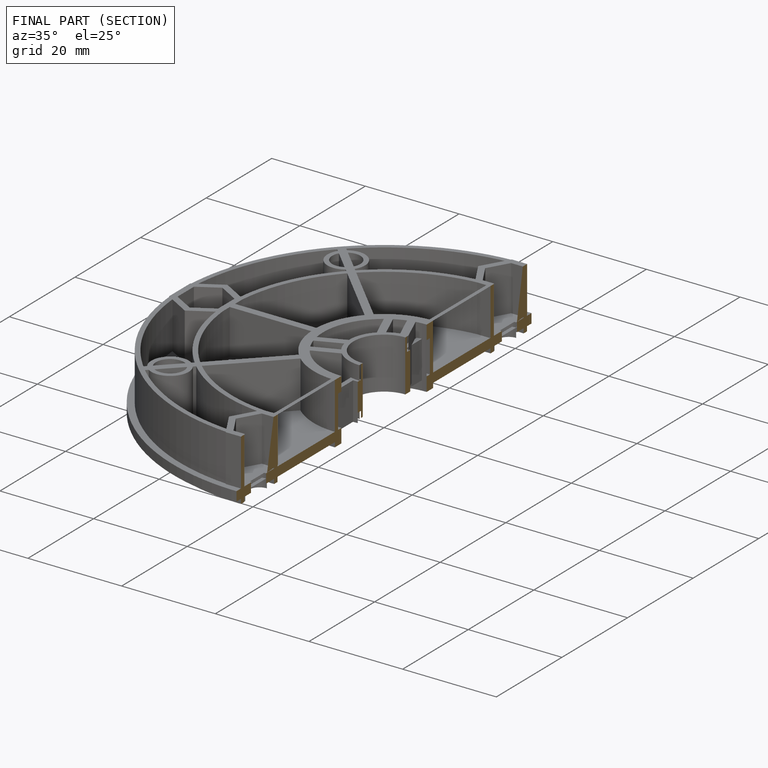
[diagram: finished part — half-section view (interior)]
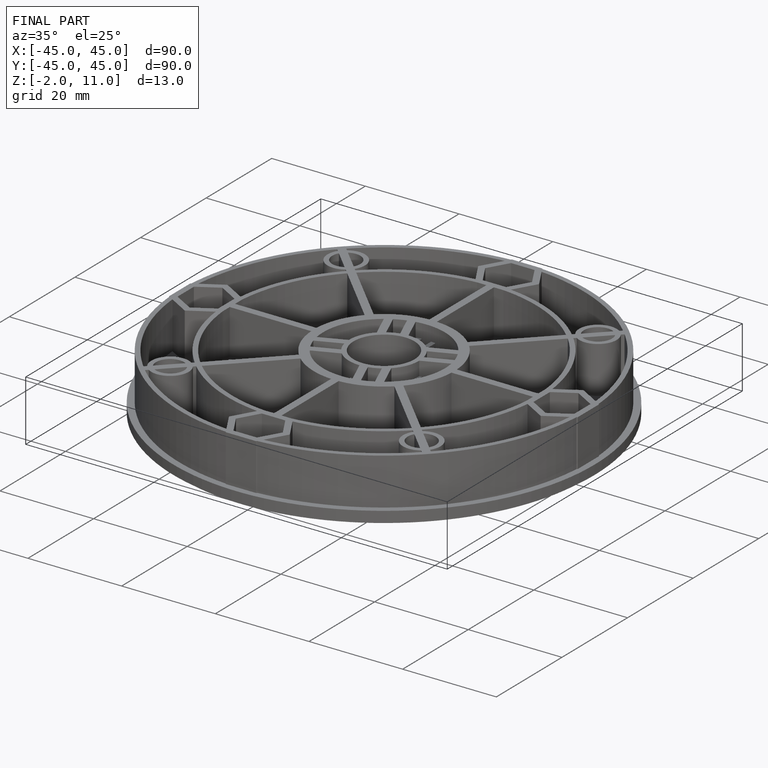
[diagram: finished part — iso view with bounding-box wireframe]
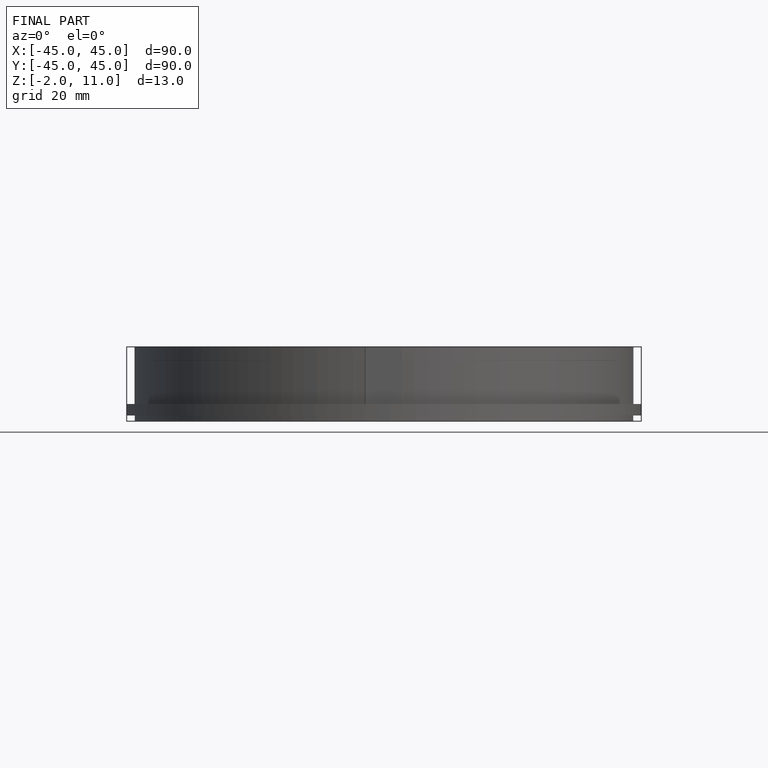
[diagram: finished part — front view with bounding-box wireframe]
